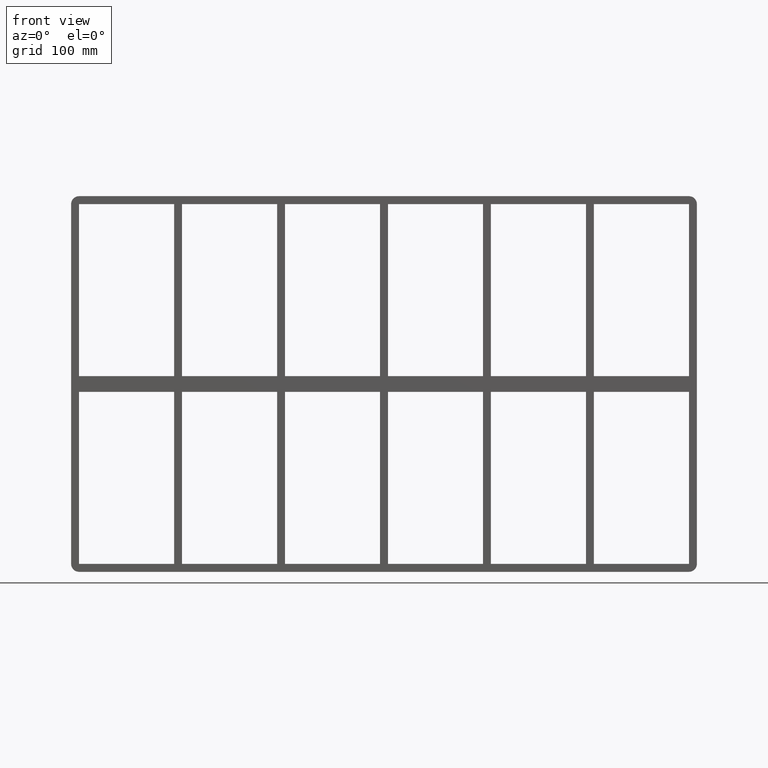
[diagram: clean part render]
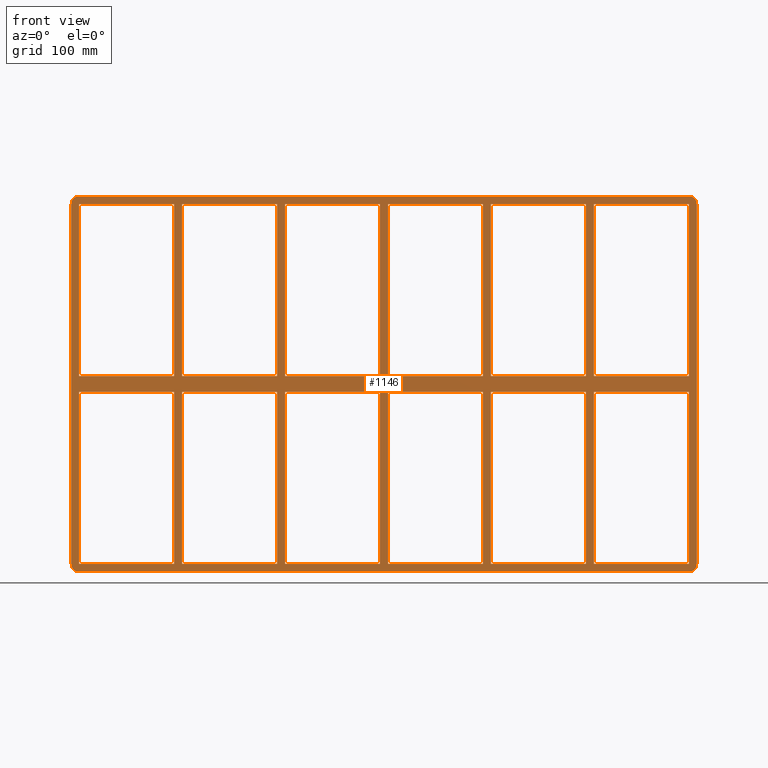
[diagram: same view with one face highlighted and labeled with its STEP entity id]
A machine part, front view. The second image highlights one B-rep face of the part: STEP entity #1146.
In plain terms, the highlighted planar face has unit normal (0, 1, 0).
Its self-contained STEP definition (entity closure, byte-faithful):
#73=CARTESIAN_POINT('',(255.99999999999875,-3.0,10.0));
#74=VERTEX_POINT('',#73);
#83=CARTESIAN_POINT('',(255.99999999999869,-3.0,227.99999999999997));
#84=VERTEX_POINT('',#83);
#85=CARTESIAN_POINT('',(255.99999999999875,-3.0,10.0));
#86=DIRECTION('',(0.0,0.0,1.0));
#87=VECTOR('',#86,217.99999999999997);
#88=LINE('',#85,#87);
#89=EDGE_CURVE('',#74,#84,#88,.T.);
#115=CARTESIAN_POINT('',(255.99999999999875,-3.0,-10.000000000009344));
#116=VERTEX_POINT('',#115);
#131=CARTESIAN_POINT('',(255.99999999999878,-3.0,-227.99999999999997));
#132=VERTEX_POINT('',#131);
#139=CARTESIAN_POINT('',(255.99999999999878,-3.0,-227.99999999999997));
#140=DIRECTION('',(0.0,0.0,1.0));
#141=VECTOR('',#140,217.99999999999062);
#142=LINE('',#139,#141);
#143=EDGE_CURVE('',#132,#116,#142,.T.);
#155=CARTESIAN_POINT('',(265.99999999999642,-3.0,10.0));
#156=VERTEX_POINT('',#155);
#171=CARTESIAN_POINT('',(265.99999999999642,-3.0,227.99999999999997));
#172=VERTEX_POINT('',#171);
#179=CARTESIAN_POINT('',(265.99999999999642,-3.0,227.99999999999997));
#180=DIRECTION('',(0.0,0.0,-1.0));
#181=VECTOR('',#180,217.99999999999997);
#182=LINE('',#179,#181);
#183=EDGE_CURVE('',#172,#156,#182,.T.);
#193=CARTESIAN_POINT('',(265.99999999999642,-3.0,-10.000000000009344));
#194=VERTEX_POINT('',#193);
#203=CARTESIAN_POINT('',(265.99999999999642,-3.0,-227.99999999998417));
#204=VERTEX_POINT('',#203);
#205=CARTESIAN_POINT('',(265.99999999999642,-3.0,-10.000000000009351));
#206=DIRECTION('',(0.0,0.0,-1.0));
#207=VECTOR('',#206,217.99999999997488);
#208=LINE('',#205,#207);
#209=EDGE_CURVE('',#194,#204,#208,.T.);
#233=CARTESIAN_POINT('',(125.49999999999872,-3.0,10.0));
#234=VERTEX_POINT('',#233);
#243=CARTESIAN_POINT('',(125.49999999999869,-3.0,227.99999999999997));
#244=VERTEX_POINT('',#243);
#245=CARTESIAN_POINT('',(125.49999999999872,-3.0,10.0));
#246=DIRECTION('',(0.0,0.0,1.0));
#247=VECTOR('',#246,217.99999999999997);
#248=LINE('',#245,#247);
#249=EDGE_CURVE('',#234,#244,#248,.T.);
#275=CARTESIAN_POINT('',(125.49999999999872,-3.0,-10.000000000009344));
#276=VERTEX_POINT('',#275);
#291=CARTESIAN_POINT('',(125.49999999999876,-3.0,-227.99999999999997));
#292=VERTEX_POINT('',#291);
#299=CARTESIAN_POINT('',(125.49999999999876,-3.0,-227.99999999999997));
#300=DIRECTION('',(0.0,0.0,1.0));
#301=VECTOR('',#300,217.99999999999062);
#302=LINE('',#299,#301);
#303=EDGE_CURVE('',#292,#276,#302,.T.);
#315=CARTESIAN_POINT('',(135.49999999999642,-3.0,10.0));
#316=VERTEX_POINT('',#315);
#331=CARTESIAN_POINT('',(135.49999999999642,-3.0,227.99999999999997));
#332=VERTEX_POINT('',#331);
#339=CARTESIAN_POINT('',(135.49999999999642,-3.0,227.99999999999997));
#340=DIRECTION('',(0.0,0.0,-1.0));
#341=VECTOR('',#340,217.99999999999997);
#342=LINE('',#339,#341);
#343=EDGE_CURVE('',#332,#316,#342,.T.);
#353=CARTESIAN_POINT('',(135.49999999999642,-3.0,-10.000000000009344));
#354=VERTEX_POINT('',#353);
#363=CARTESIAN_POINT('',(135.49999999999642,-3.0,-227.99999999998417));
#364=VERTEX_POINT('',#363);
#365=CARTESIAN_POINT('',(135.49999999999642,-3.0,-10.000000000009351));
#366=DIRECTION('',(0.0,0.0,-1.0));
#367=VECTOR('',#366,217.99999999997488);
#368=LINE('',#365,#367);
#369=EDGE_CURVE('',#354,#364,#368,.T.);
#393=CARTESIAN_POINT('',(-5.000000000001315,-3.0,10.0));
#394=VERTEX_POINT('',#393);
#403=CARTESIAN_POINT('',(-5.00000000000135,-3.0,227.99999999999997));
#404=VERTEX_POINT('',#403);
#405=CARTESIAN_POINT('',(-5.000000000001316,-3.0,10.0));
#406=DIRECTION('',(0.0,0.0,1.0));
#407=VECTOR('',#406,217.99999999999997);
#408=LINE('',#405,#407);
#409=EDGE_CURVE('',#394,#404,#408,.T.);
#435=CARTESIAN_POINT('',(-5.000000000001314,-3.0,-10.000000000009379));
#436=VERTEX_POINT('',#435);
#451=CARTESIAN_POINT('',(-5.000000000001279,-3.0,-227.99999999999997));
#452=VERTEX_POINT('',#451);
#459=CARTESIAN_POINT('',(-5.000000000001279,-3.0,-227.99999999999997));
#460=DIRECTION('',(0.0,0.0,1.0));
#461=VECTOR('',#460,217.99999999999059);
#462=LINE('',#459,#461);
#463=EDGE_CURVE('',#452,#436,#462,.T.);
#475=CARTESIAN_POINT('',(4.999999999996376,-3.0,10.0));
#476=VERTEX_POINT('',#475);
#491=CARTESIAN_POINT('',(4.999999999996376,-3.0,227.99999999999997));
#492=VERTEX_POINT('',#491);
#499=CARTESIAN_POINT('',(4.999999999996376,-3.0,227.99999999999997));
#500=DIRECTION('',(0.0,0.0,-1.0));
#501=VECTOR('',#500,217.99999999999997);
#502=LINE('',#499,#501);
#503=EDGE_CURVE('',#492,#476,#502,.T.);
#513=CARTESIAN_POINT('',(4.999999999996376,-3.0,-10.000000000009344));
#514=VERTEX_POINT('',#513);
#523=CARTESIAN_POINT('',(4.999999999996376,-3.0,-227.99999999998417));
#524=VERTEX_POINT('',#523);
#525=CARTESIAN_POINT('',(4.999999999996376,-3.0,-10.000000000009351));
#526=DIRECTION('',(0.0,0.0,-1.0));
#527=VECTOR('',#526,217.99999999997488);
#528=LINE('',#525,#527);
#529=EDGE_CURVE('',#514,#524,#528,.T.);
#553=CARTESIAN_POINT('',(-135.50000000000131,-3.0,10.0));
#554=VERTEX_POINT('',#553);
#563=CARTESIAN_POINT('',(-135.50000000000136,-3.0,227.99999999999997));
#564=VERTEX_POINT('',#563);
#565=CARTESIAN_POINT('',(-135.50000000000131,-3.0,10.0));
#566=DIRECTION('',(0.0,0.0,1.0));
#567=VECTOR('',#566,217.99999999999997);
#568=LINE('',#565,#567);
#569=EDGE_CURVE('',#554,#564,#568,.T.);
#595=CARTESIAN_POINT('',(-135.50000000000131,-3.0,-10.000000000009379));
#596=VERTEX_POINT('',#595);
#611=CARTESIAN_POINT('',(-135.50000000000128,-3.0,-227.99999999999997));
#612=VERTEX_POINT('',#611);
#619=CARTESIAN_POINT('',(-135.50000000000128,-3.0,-227.99999999999997));
#620=DIRECTION('',(0.0,0.0,1.0));
#621=VECTOR('',#620,217.99999999999059);
#622=LINE('',#619,#621);
#623=EDGE_CURVE('',#612,#596,#622,.T.);
#635=CARTESIAN_POINT('',(-125.50000000000364,-3.0,10.0));
#636=VERTEX_POINT('',#635);
#651=CARTESIAN_POINT('',(-125.50000000000364,-3.0,227.99999999999997));
#652=VERTEX_POINT('',#651);
#659=CARTESIAN_POINT('',(-125.50000000000364,-3.0,227.99999999999997));
#660=DIRECTION('',(0.0,0.0,-1.0));
#661=VECTOR('',#660,217.99999999999997);
#662=LINE('',#659,#661);
#663=EDGE_CURVE('',#652,#636,#662,.T.);
#673=CARTESIAN_POINT('',(-125.50000000000364,-3.0,-10.000000000009379));
#674=VERTEX_POINT('',#673);
#683=CARTESIAN_POINT('',(-125.50000000000364,-3.0,-227.99999999998417));
#684=VERTEX_POINT('',#683);
#685=CARTESIAN_POINT('',(-125.50000000000364,-3.0,-10.000000000009379));
#686=DIRECTION('',(0.0,0.0,-1.0));
#687=VECTOR('',#686,217.99999999997485);
#688=LINE('',#685,#687);
#689=EDGE_CURVE('',#674,#684,#688,.T.);
#722=CARTESIAN_POINT('',(-256.00000000000364,-3.0,-227.99999999998417));
#723=VERTEX_POINT('',#722);
#730=CARTESIAN_POINT('',(-135.50000000000131,-3.0,-227.99999999999997));
#731=DIRECTION('',(-1.0,0.0,0.0));
#732=VECTOR('',#731,120.50000000000227);
#733=LINE('',#730,#732);
#734=EDGE_CURVE('',#612,#723,#733,.T.);
#752=CARTESIAN_POINT('',(-5.000000000001279,-3.0,-227.99999999999997));
#753=DIRECTION('',(-1.0,0.0,0.0));
#754=VECTOR('',#753,120.50000000000236);
#755=LINE('',#752,#754);
#756=EDGE_CURVE('',#452,#684,#755,.T.);
#774=CARTESIAN_POINT('',(125.49999999999875,-3.0,-227.99999999999997));
#775=DIRECTION('',(-1.0,0.0,0.0));
#776=VECTOR('',#775,120.50000000000239);
#777=LINE('',#774,#776);
#778=EDGE_CURVE('',#292,#524,#777,.T.);
#796=CARTESIAN_POINT('',(255.99999999999875,-3.0,-227.99999999999997));
#797=DIRECTION('',(-1.0,0.0,0.0));
#798=VECTOR('',#797,120.50000000000233);
#799=LINE('',#796,#798);
#800=EDGE_CURVE('',#132,#364,#799,.T.);
#811=CARTESIAN_POINT('',(386.50000000000011,-3.0,-227.99999999999997));
#812=VERTEX_POINT('',#811);
#813=CARTESIAN_POINT('',(386.50000000000011,-3.0,-227.99999999999997));
#814=DIRECTION('',(-1.0,0.0,0.0));
#815=VECTOR('',#814,120.50000000000369);
#816=LINE('',#813,#815);
#817=EDGE_CURVE('',#812,#204,#816,.T.);
#836=CARTESIAN_POINT('',(0.0,-3.0,0.0));
#837=DIRECTION('',(0.0,1.0,0.0));
#838=DIRECTION('',(0.0,0.0,1.0));
#839=AXIS2_PLACEMENT_3D('',#836,#837,#838);
#840=PLANE('',#839);
#841=CARTESIAN_POINT('',(396.50000000000006,-3.0,-228.0));
#842=VERTEX_POINT('',#841);
#843=CARTESIAN_POINT('',(386.50000000000006,-3.0,-238.0));
#844=VERTEX_POINT('',#843);
#845=CARTESIAN_POINT('',(386.50000000000006,-3.0,-228.0));
#846=DIRECTION('',(0.0,1.0,0.0));
#847=DIRECTION('',(0.707106781186547,0.0,-0.707106781186547));
#848=AXIS2_PLACEMENT_3D('',#845,#846,#847);
#849=CIRCLE('',#848,9.999999999999998);
#850=EDGE_CURVE('',#842,#844,#849,.T.);
#851=ORIENTED_EDGE('',*,*,#850,.F.);
#852=CARTESIAN_POINT('',(396.50000000000006,-3.0,228.0));
#853=VERTEX_POINT('',#852);
#854=CARTESIAN_POINT('',(396.50000000000006,-3.0,-228.0));
#855=DIRECTION('',(0.0,0.0,1.0));
#856=VECTOR('',#855,456.0);
#857=LINE('',#854,#856);
#858=EDGE_CURVE('',#842,#853,#857,.T.);
#859=ORIENTED_EDGE('',*,*,#858,.T.);
#860=CARTESIAN_POINT('',(386.50000000000006,-3.0,238.0));
#861=VERTEX_POINT('',#860);
#862=CARTESIAN_POINT('',(386.50000000000006,-3.0,228.0));
#863=DIRECTION('',(0.0,1.0,0.0));
#864=DIRECTION('',(0.707106781186547,0.0,0.707106781186547));
#865=AXIS2_PLACEMENT_3D('',#862,#863,#864);
#866=CIRCLE('',#865,9.999999999999998);
#867=EDGE_CURVE('',#861,#853,#866,.T.);
#868=ORIENTED_EDGE('',*,*,#867,.F.);
#869=CARTESIAN_POINT('',(-386.50000000000006,-3.0,238.0));
#870=VERTEX_POINT('',#869);
#871=CARTESIAN_POINT('',(386.50000000000006,-3.0,238.0));
#872=DIRECTION('',(-1.0,0.0,0.0));
#873=VECTOR('',#872,773.00000000000011);
#874=LINE('',#871,#873);
#875=EDGE_CURVE('',#861,#870,#874,.T.);
#876=ORIENTED_EDGE('',*,*,#875,.T.);
#877=CARTESIAN_POINT('',(-396.50000000000006,-3.0,228.0));
#878=VERTEX_POINT('',#877);
#879=CARTESIAN_POINT('',(-386.50000000000006,-3.0,228.0));
#880=DIRECTION('',(0.0,1.0,0.0));
#881=DIRECTION('',(-0.707106781186547,0.0,0.707106781186547));
#882=AXIS2_PLACEMENT_3D('',#879,#880,#881);
#883=CIRCLE('',#882,9.999999999999998);
#884=EDGE_CURVE('',#878,#870,#883,.T.);
#885=ORIENTED_EDGE('',*,*,#884,.F.);
#886=CARTESIAN_POINT('',(-396.50000000000006,-3.0,-228.0));
#887=VERTEX_POINT('',#886);
#888=CARTESIAN_POINT('',(-396.50000000000006,-3.0,228.0));
#889=DIRECTION('',(0.0,0.0,-1.0));
#890=VECTOR('',#889,456.0);
#891=LINE('',#888,#890);
#892=EDGE_CURVE('',#878,#887,#891,.T.);
#893=ORIENTED_EDGE('',*,*,#892,.T.);
#894=CARTESIAN_POINT('',(-386.50000000000006,-3.0,-238.0));
#895=VERTEX_POINT('',#894);
#896=CARTESIAN_POINT('',(-386.50000000000006,-3.0,-228.0));
#897=DIRECTION('',(0.0,1.0,0.0));
#898=DIRECTION('',(-0.707106781186547,0.0,-0.707106781186547));
#899=AXIS2_PLACEMENT_3D('',#896,#897,#898);
#900=CIRCLE('',#899,9.999999999999998);
#901=EDGE_CURVE('',#895,#887,#900,.T.);
#902=ORIENTED_EDGE('',*,*,#901,.F.);
#903=CARTESIAN_POINT('',(-386.50000000000006,-3.0,-238.0));
#904=DIRECTION('',(1.0,0.0,0.0));
#905=VECTOR('',#904,773.00000000000011);
#906=LINE('',#903,#905);
#907=EDGE_CURVE('',#895,#844,#906,.T.);
#908=ORIENTED_EDGE('',*,*,#907,.T.);
#909=EDGE_LOOP('',(#851,#859,#868,#876,#885,#893,#902,#908));
#910=FACE_OUTER_BOUND('',#909,.T.);
#911=ORIENTED_EDGE('',*,*,#800,.T.);
#912=ORIENTED_EDGE('',*,*,#369,.F.);
#913=CARTESIAN_POINT('',(255.99999999999875,-3.0,-10.000000000009349));
#914=DIRECTION('',(-1.0,0.0,0.0));
#915=VECTOR('',#914,120.50000000000233);
#916=LINE('',#913,#915);
#917=EDGE_CURVE('',#116,#354,#916,.T.);
#918=ORIENTED_EDGE('',*,*,#917,.F.);
#919=ORIENTED_EDGE('',*,*,#143,.F.);
#920=EDGE_LOOP('',(#911,#912,#918,#919));
#921=FACE_BOUND('',#920,.T.);
#922=CARTESIAN_POINT('',(135.49999999999642,-3.0,10.0));
#923=DIRECTION('',(1.0,0.0,0.0));
#924=VECTOR('',#923,120.50000000000239);
#925=LINE('',#922,#924);
#926=EDGE_CURVE('',#316,#74,#925,.T.);
#927=ORIENTED_EDGE('',*,*,#926,.F.);
#928=ORIENTED_EDGE('',*,*,#343,.F.);
#929=CARTESIAN_POINT('',(135.49999999999645,-3.0,228.0));
#930=DIRECTION('',(1.0,0.0,0.0));
#931=VECTOR('',#930,120.50000000000222);
#932=LINE('',#929,#931);
#933=EDGE_CURVE('',#332,#84,#932,.T.);
#934=ORIENTED_EDGE('',*,*,#933,.T.);
#935=ORIENTED_EDGE('',*,*,#89,.F.);
#936=EDGE_LOOP('',(#927,#928,#934,#935));
#937=FACE_BOUND('',#936,.T.);
#938=ORIENTED_EDGE('',*,*,#778,.T.);
#939=ORIENTED_EDGE('',*,*,#529,.F.);
#940=CARTESIAN_POINT('',(125.49999999999875,-3.0,-10.000000000009356));
#941=DIRECTION('',(-1.0,0.0,0.0));
#942=VECTOR('',#941,120.50000000000239);
#943=LINE('',#940,#942);
#944=EDGE_CURVE('',#276,#514,#943,.T.);
#945=ORIENTED_EDGE('',*,*,#944,.F.);
#946=ORIENTED_EDGE('',*,*,#303,.F.);
#947=EDGE_LOOP('',(#938,#939,#945,#946));
#948=FACE_BOUND('',#947,.T.);
#949=CARTESIAN_POINT('',(4.999999999996419,-3.0,10.0));
#950=DIRECTION('',(1.0,0.0,0.0));
#951=VECTOR('',#950,120.50000000000239);
#952=LINE('',#949,#951);
#953=EDGE_CURVE('',#476,#234,#952,.T.);
#954=ORIENTED_EDGE('',*,*,#953,.F.);
#955=ORIENTED_EDGE('',*,*,#503,.F.);
#956=CARTESIAN_POINT('',(4.99999999999639,-3.0,228.0));
#957=DIRECTION('',(1.0,0.0,0.0));
#958=VECTOR('',#957,120.50000000000233);
#959=LINE('',#956,#958);
#960=EDGE_CURVE('',#492,#244,#959,.T.);
#961=ORIENTED_EDGE('',*,*,#960,.T.);
#962=ORIENTED_EDGE('',*,*,#249,.F.);
#963=EDGE_LOOP('',(#954,#955,#961,#962));
#964=FACE_BOUND('',#963,.T.);
#965=ORIENTED_EDGE('',*,*,#756,.T.);
#966=ORIENTED_EDGE('',*,*,#689,.F.);
#967=CARTESIAN_POINT('',(-5.000000000001251,-3.0,-10.000000000009361));
#968=DIRECTION('',(-1.0,0.0,0.0));
#969=VECTOR('',#968,120.50000000000239);
#970=LINE('',#967,#969);
#971=EDGE_CURVE('',#436,#674,#970,.T.);
#972=ORIENTED_EDGE('',*,*,#971,.F.);
#973=ORIENTED_EDGE('',*,*,#463,.F.);
#974=EDGE_LOOP('',(#965,#966,#972,#973));
#975=FACE_BOUND('',#974,.T.);
#976=CARTESIAN_POINT('',(-125.50000000000364,-3.0,10.0));
#977=DIRECTION('',(1.0,0.0,0.0));
#978=VECTOR('',#977,120.50000000000233);
#979=LINE('',#976,#978);
#980=EDGE_CURVE('',#636,#394,#979,.T.);
#981=ORIENTED_EDGE('',*,*,#980,.F.);
#982=ORIENTED_EDGE('',*,*,#663,.F.);
#983=CARTESIAN_POINT('',(-125.50000000000364,-3.0,228.0));
#984=DIRECTION('',(1.0,0.0,0.0));
#985=VECTOR('',#984,120.5000000000023);
#986=LINE('',#983,#985);
#987=EDGE_CURVE('',#652,#404,#986,.T.);
#988=ORIENTED_EDGE('',*,*,#987,.T.);
#989=ORIENTED_EDGE('',*,*,#409,.F.);
#990=EDGE_LOOP('',(#981,#982,#988,#989));
#991=FACE_BOUND('',#990,.T.);
#992=ORIENTED_EDGE('',*,*,#734,.T.);
#993=CARTESIAN_POINT('',(-256.00000000000364,-3.0,-10.000000000009372));
#994=VERTEX_POINT('',#993);
#995=CARTESIAN_POINT('',(-256.00000000000364,-3.0,-10.000000000009379));
#996=DIRECTION('',(0.0,0.0,-1.0));
#997=VECTOR('',#996,217.99999999997485);
#998=LINE('',#995,#997);
#999=EDGE_CURVE('',#994,#723,#998,.T.);
#1000=ORIENTED_EDGE('',*,*,#999,.F.);
#1001=CARTESIAN_POINT('',(-135.50000000000136,-3.0,-10.000000000009369));
#1002=DIRECTION('',(-1.0,0.0,0.0));
#1003=VECTOR('',#1002,120.50000000000227);
#1004=LINE('',#1001,#1003);
#1005=EDGE_CURVE('',#596,#994,#1004,.T.);
#1006=ORIENTED_EDGE('',*,*,#1005,.F.);
#1007=ORIENTED_EDGE('',*,*,#623,.F.);
#1008=EDGE_LOOP('',(#992,#1000,#1006,#1007));
#1009=FACE_BOUND('',#1008,.T.);
#1010=CARTESIAN_POINT('',(-256.00000000000364,-3.0,10.0));
#1011=VERTEX_POINT('',#1010);
#1012=CARTESIAN_POINT('',(-256.00000000000364,-3.0,10.0));
#1013=DIRECTION('',(1.0,0.0,0.0));
#1014=VECTOR('',#1013,120.50000000000233);
#1015=LINE('',#1012,#1014);
#1016=EDGE_CURVE('',#1011,#554,#1015,.T.);
#1017=ORIENTED_EDGE('',*,*,#1016,.F.);
#1018=CARTESIAN_POINT('',(-256.00000000000364,-3.0,227.99999999999997));
#1019=VERTEX_POINT('',#1018);
#1020=CARTESIAN_POINT('',(-256.00000000000364,-3.0,227.99999999999997));
#1021=DIRECTION('',(0.0,0.0,-1.0));
#1022=VECTOR('',#1021,217.99999999999997);
#1023=LINE('',#1020,#1022);
#1024=EDGE_CURVE('',#1019,#1011,#1023,.T.);
#1025=ORIENTED_EDGE('',*,*,#1024,.F.);
#1026=CARTESIAN_POINT('',(-256.00000000000364,-3.0,228.0));
#1027=DIRECTION('',(1.0,0.0,0.0));
#1028=VECTOR('',#1027,120.50000000000227);
#1029=LINE('',#1026,#1028);
#1030=EDGE_CURVE('',#1019,#564,#1029,.T.);
#1031=ORIENTED_EDGE('',*,*,#1030,.T.);
#1032=ORIENTED_EDGE('',*,*,#569,.F.);
#1033=EDGE_LOOP('',(#1017,#1025,#1031,#1032));
#1034=FACE_BOUND('',#1033,.T.);
#1035=ORIENTED_EDGE('',*,*,#183,.F.);
#1036=CARTESIAN_POINT('',(386.50000000000011,-3.0,227.99999999999997));
#1037=VERTEX_POINT('',#1036);
#1038=CARTESIAN_POINT('',(265.99999999999636,-3.0,228.0));
#1039=DIRECTION('',(1.0,0.0,0.0));
#1040=VECTOR('',#1039,120.50000000000375);
#1041=LINE('',#1038,#1040);
#1042=EDGE_CURVE('',#172,#1037,#1041,.T.);
#1043=ORIENTED_EDGE('',*,*,#1042,.T.);
#1044=CARTESIAN_POINT('',(386.50000000000006,-3.0,10.0));
#1045=VERTEX_POINT('',#1044);
#1046=CARTESIAN_POINT('',(386.50000000000011,-3.0,227.99999999999997));
#1047=DIRECTION('',(0.0,0.0,-1.0));
#1048=VECTOR('',#1047,217.99999999999997);
#1049=LINE('',#1046,#1048);
#1050=EDGE_CURVE('',#1037,#1045,#1049,.T.);
#1051=ORIENTED_EDGE('',*,*,#1050,.T.);
#1052=CARTESIAN_POINT('',(265.99999999999653,-3.0,10.0));
#1053=DIRECTION('',(1.0,0.0,0.0));
#1054=VECTOR('',#1053,120.50000000000341);
#1055=LINE('',#1052,#1054);
#1056=EDGE_CURVE('',#156,#1045,#1055,.T.);
#1057=ORIENTED_EDGE('',*,*,#1056,.F.);
#1058=EDGE_LOOP('',(#1035,#1043,#1051,#1057));
#1059=FACE_BOUND('',#1058,.T.);
#1060=ORIENTED_EDGE('',*,*,#209,.F.);
#1061=CARTESIAN_POINT('',(386.49999999999636,-3.0,-10.000000000009344));
#1062=VERTEX_POINT('',#1061);
#1063=CARTESIAN_POINT('',(386.49999999999636,-3.0,-10.000000000009344));
#1064=DIRECTION('',(-1.0,0.0,0.0));
#1065=VECTOR('',#1064,120.49999999999994);
#1066=LINE('',#1063,#1065);
#1067=EDGE_CURVE('',#1062,#194,#1066,.T.);
#1068=ORIENTED_EDGE('',*,*,#1067,.F.);
#1069=CARTESIAN_POINT('',(386.50000000000011,-3.0,-10.000000000009351));
#1070=DIRECTION('',(0.0,0.0,-1.0));
#1071=VECTOR('',#1070,217.99999999999059);
#1072=LINE('',#1069,#1071);
#1073=EDGE_CURVE('',#1062,#812,#1072,.T.);
#1074=ORIENTED_EDGE('',*,*,#1073,.T.);
#1075=ORIENTED_EDGE('',*,*,#817,.T.);
#1076=EDGE_LOOP('',(#1060,#1068,#1074,#1075));
#1077=FACE_BOUND('',#1076,.T.);
#1078=CARTESIAN_POINT('',(-386.49999999999983,-3.0,10.0));
#1079=VERTEX_POINT('',#1078);
#1080=CARTESIAN_POINT('',(-386.5,-3.0,227.99999999999997));
#1081=VERTEX_POINT('',#1080);
#1082=CARTESIAN_POINT('',(-386.50000000000006,-3.0,10.0));
#1083=DIRECTION('',(0.0,0.0,1.0));
#1084=VECTOR('',#1083,217.99999999999994);
#1085=LINE('',#1082,#1084);
#1086=EDGE_CURVE('',#1079,#1081,#1085,.T.);
#1087=ORIENTED_EDGE('',*,*,#1086,.T.);
#1088=CARTESIAN_POINT('',(-266.00000000000136,-3.0,227.99999999999997));
#1089=VERTEX_POINT('',#1088);
#1090=CARTESIAN_POINT('',(-386.5,-3.0,228.0));
#1091=DIRECTION('',(1.0,0.0,0.0));
#1092=VECTOR('',#1091,120.49999999999864);
#1093=LINE('',#1090,#1092);
#1094=EDGE_CURVE('',#1081,#1089,#1093,.T.);
#1095=ORIENTED_EDGE('',*,*,#1094,.T.);
#1096=CARTESIAN_POINT('',(-266.00000000000131,-3.0,10.0));
#1097=VERTEX_POINT('',#1096);
#1098=CARTESIAN_POINT('',(-266.00000000000136,-3.0,10.0));
#1099=DIRECTION('',(0.0,0.0,1.0));
#1100=VECTOR('',#1099,217.99999999999997);
#1101=LINE('',#1098,#1100);
#1102=EDGE_CURVE('',#1097,#1089,#1101,.T.);
#1103=ORIENTED_EDGE('',*,*,#1102,.F.);
#1104=CARTESIAN_POINT('',(-386.49999999999983,-3.0,10.0));
#1105=DIRECTION('',(1.0,0.0,0.0));
#1106=VECTOR('',#1105,120.49999999999852);
#1107=LINE('',#1104,#1106);
#1108=EDGE_CURVE('',#1079,#1097,#1107,.T.);
#1109=ORIENTED_EDGE('',*,*,#1108,.F.);
#1110=EDGE_LOOP('',(#1087,#1095,#1103,#1109));
#1111=FACE_BOUND('',#1110,.T.);
#1112=CARTESIAN_POINT('',(-266.00000000000136,-3.0,-10.000000000009376));
#1113=VERTEX_POINT('',#1112);
#1114=CARTESIAN_POINT('',(-386.49999999999983,-3.0,-10.000000000009379));
#1115=VERTEX_POINT('',#1114);
#1116=CARTESIAN_POINT('',(-266.00000000000136,-3.0,-10.000000000009374));
#1117=DIRECTION('',(-1.0,0.0,0.0));
#1118=VECTOR('',#1117,120.49999999999841);
#1119=LINE('',#1116,#1118);
#1120=EDGE_CURVE('',#1113,#1115,#1119,.T.);
#1121=ORIENTED_EDGE('',*,*,#1120,.F.);
#1122=CARTESIAN_POINT('',(-266.00000000000131,-3.0,-227.99999999999997));
#1123=VERTEX_POINT('',#1122);
#1124=CARTESIAN_POINT('',(-266.00000000000131,-3.0,-227.99999999999997));
#1125=DIRECTION('',(0.0,0.0,1.0));
#1126=VECTOR('',#1125,217.99999999999059);
#1127=LINE('',#1124,#1126);
#1128=EDGE_CURVE('',#1123,#1113,#1127,.T.);
#1129=ORIENTED_EDGE('',*,*,#1128,.F.);
#1130=CARTESIAN_POINT('',(-386.5,-3.0,-227.99999999999997));
#1131=VERTEX_POINT('',#1130);
#1132=CARTESIAN_POINT('',(-266.00000000000131,-3.0,-227.99999999999997));
#1133=DIRECTION('',(-1.0,0.0,0.0));
#1134=VECTOR('',#1133,120.49999999999875);
#1135=LINE('',#1132,#1134);
#1136=EDGE_CURVE('',#1123,#1131,#1135,.T.);
#1137=ORIENTED_EDGE('',*,*,#1136,.T.);
#1138=CARTESIAN_POINT('',(-386.50000000000006,-3.0,-227.99999999999997));
#1139=DIRECTION('',(0.0,0.0,1.0));
#1140=VECTOR('',#1139,217.99999999999059);
#1141=LINE('',#1138,#1140);
#1142=EDGE_CURVE('',#1131,#1115,#1141,.T.);
#1143=ORIENTED_EDGE('',*,*,#1142,.T.);
#1144=EDGE_LOOP('',(#1121,#1129,#1137,#1143));
#1145=FACE_BOUND('',#1144,.T.);
#1146=ADVANCED_FACE('',(#910,#921,#937,#948,#964,#975,#991,#1009,#1034,#1059,#1077,#1111,#1145),#840,.F.);